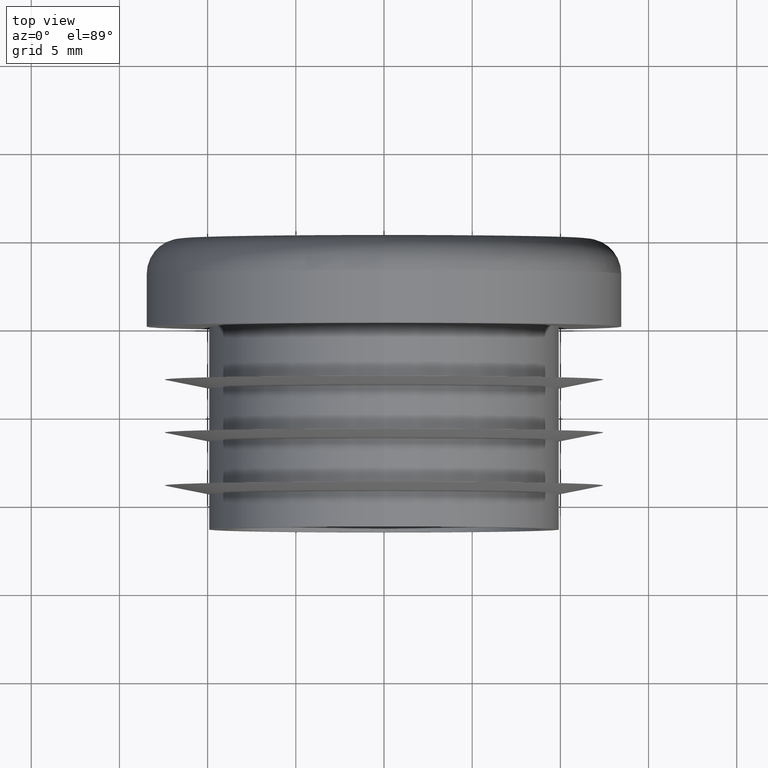
[diagram: clean part render]
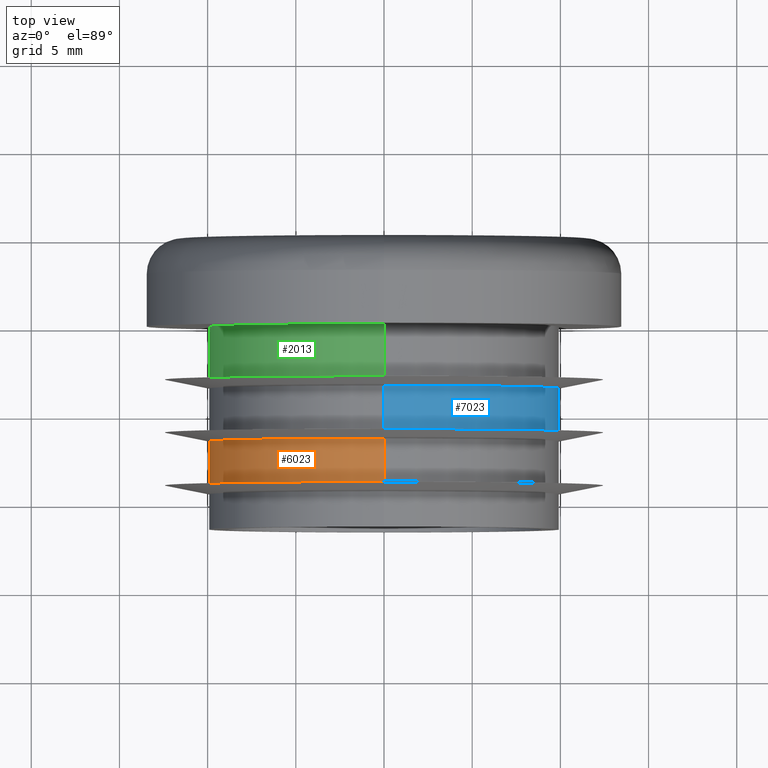
[diagram: same view with three faces highlighted in distinct colors, each labeled with its STEP entity id]
A machine part, top view with three faces highlighted in distinct colors.
Their STEP definitions:

[orange] entity #6023 — the highlighted cylindrical surface (partial cylindrical patch) has radius 9.95 mm, axis along (-0, 1, -0).
#81 = VERTEX_POINT ( 'NONE', #5447 ) ;
#326 = CARTESIAN_POINT ( 'NONE',  ( 1.218523565151616400E-015, -6.500000000000000900, -9.949999999999999300 ) ) ;
#384 = VERTEX_POINT ( 'NONE', #4307 ) ;
#1457 = CARTESIAN_POINT ( 'NONE',  ( 1.218523565151616400E-015, -9.000000000000000000, -9.949999999999999300 ) ) ;
#1610 = EDGE_CURVE ( 'NONE', #4909, #81, #4993, .T. ) ;
#2074 = LINE ( 'NONE', #2580, #7010 ) ;
#2577 = VECTOR ( 'NONE', #4112, 1000.000000000000000 ) ;
#2580 = CARTESIAN_POINT ( 'NONE',  ( 0.0000000000000000000, -11.50000000000000000, 9.949999999999999300 ) ) ;
#2761 = CARTESIAN_POINT ( 'NONE',  ( 0.0000000000000000000, -9.000000000000000000, 0.0000000000000000000 ) ) ;
#3038 = CIRCLE ( 'NONE', #4231, 9.949999999999999300 ) ;
#3442 = DIRECTION ( 'NONE',  ( 0.0000000000000000000, 0.0000000000000000000, -1.000000000000000000 ) ) ;
#3915 = EDGE_CURVE ( 'NONE', #384, #6318, #3038, .T. ) ;
#3943 = FACE_OUTER_BOUND ( 'NONE', #6321, .T. ) ;
#4005 = ORIENTED_EDGE ( 'NONE', *, *, #4469, .T. ) ;
#4112 = DIRECTION ( 'NONE',  ( -0.0000000000000000000, 1.000000000000000000, -0.0000000000000000000 ) ) ;
#4231 = AXIS2_PLACEMENT_3D ( 'NONE', #2761, #7197, #3442 ) ;
#4307 = CARTESIAN_POINT ( 'NONE',  ( 0.0000000000000000000, -9.000000000000000000, 9.949999999999999300 ) ) ;
#4367 = LINE ( 'NONE', #7195, #2577 ) ;
#4469 = EDGE_CURVE ( 'NONE', #384, #81, #2074, .T. ) ;
#4547 = DIRECTION ( 'NONE',  ( 0.0000000000000000000, 0.0000000000000000000, 1.000000000000000000 ) ) ;
#4909 = VERTEX_POINT ( 'NONE', #326 ) ;
#4993 = CIRCLE ( 'NONE', #5649, 9.949999999999999300 ) ;
#5173 = EDGE_CURVE ( 'NONE', #6318, #4909, #4367, .T. ) ;
#5447 = CARTESIAN_POINT ( 'NONE',  ( 0.0000000000000000000, -6.500000000000000900, 9.949999999999999300 ) ) ;
#5527 = CYLINDRICAL_SURFACE ( 'NONE', #6552, 9.949999999999999300 ) ;
#5649 = AXIS2_PLACEMENT_3D ( 'NONE', #6386, #6368, #6355 ) ;
#6023 = ADVANCED_FACE ( 'NONE', ( #3943 ), #5527, .T. ) ;
#6318 = VERTEX_POINT ( 'NONE', #1457 ) ;
#6321 = EDGE_LOOP ( 'NONE', ( #6767, #6676, #4005, #7506 ) ) ;
#6355 = DIRECTION ( 'NONE',  ( 0.0000000000000000000, 0.0000000000000000000, 1.000000000000000000 ) ) ;
#6368 = DIRECTION ( 'NONE',  ( -0.0000000000000000000, 1.000000000000000000, -0.0000000000000000000 ) ) ;
#6386 = CARTESIAN_POINT ( 'NONE',  ( 0.0000000000000000000, -6.500000000000000900, 0.0000000000000000000 ) ) ;
#6552 = AXIS2_PLACEMENT_3D ( 'NONE', #7596, #8190, #4547 ) ;
#6676 = ORIENTED_EDGE ( 'NONE', *, *, #3915, .F. ) ;
#6767 = ORIENTED_EDGE ( 'NONE', *, *, #5173, .F. ) ;
#7010 = VECTOR ( 'NONE', #8250, 1000.000000000000000 ) ;
#7195 = CARTESIAN_POINT ( 'NONE',  ( 1.218523565151616400E-015, -11.50000000000000000, -9.949999999999999300 ) ) ;
#7197 = DIRECTION ( 'NONE',  ( 0.0000000000000000000, -1.000000000000000000, 0.0000000000000000000 ) ) ;
#7506 = ORIENTED_EDGE ( 'NONE', *, *, #1610, .F. ) ;
#7596 = CARTESIAN_POINT ( 'NONE',  ( 0.0000000000000000000, -11.50000000000000000, 0.0000000000000000000 ) ) ;
#8190 = DIRECTION ( 'NONE',  ( -0.0000000000000000000, 1.000000000000000000, -0.0000000000000000000 ) ) ;
#8250 = DIRECTION ( 'NONE',  ( -0.0000000000000000000, 1.000000000000000000, -0.0000000000000000000 ) ) ;

[blue] entity #7023 — the highlighted cylindrical surface (partial cylindrical patch) has radius 9.95 mm, axis along (-0, 1, -0).
#57 = DIRECTION ( 'NONE',  ( -0.0000000000000000000, 1.000000000000000000, -0.0000000000000000000 ) ) ;
#167 = ORIENTED_EDGE ( 'NONE', *, *, #7599, .F. ) ;
#676 = CARTESIAN_POINT ( 'NONE',  ( 1.218523565151616400E-015, -3.500000000000000900, -9.949999999999999300 ) ) ;
#723 = EDGE_CURVE ( 'NONE', #7104, #1193, #7312, .T. ) ;
#995 = CIRCLE ( 'NONE', #7129, 9.949999999999999300 ) ;
#1193 = VERTEX_POINT ( 'NONE', #676 ) ;
#1223 = AXIS2_PLACEMENT_3D ( 'NONE', #3462, #57, #6644 ) ;
#1271 = CARTESIAN_POINT ( 'NONE',  ( 0.0000000000000000000, -11.50000000000000000, 9.949999999999999300 ) ) ;
#1472 = CIRCLE ( 'NONE', #2435, 9.949999999999999300 ) ;
#1634 = DIRECTION ( 'NONE',  ( -0.0000000000000000000, 1.000000000000000000, -0.0000000000000000000 ) ) ;
#1890 = ORIENTED_EDGE ( 'NONE', *, *, #4026, .F. ) ;
#2435 = AXIS2_PLACEMENT_3D ( 'NONE', #3279, #7670, #3954 ) ;
#2445 = FACE_OUTER_BOUND ( 'NONE', #4106, .T. ) ;
#2926 = VECTOR ( 'NONE', #5961, 1000.000000000000000 ) ;
#3032 = CARTESIAN_POINT ( 'NONE',  ( 1.218523565151616400E-015, -5.999999999999999100, -9.949999999999999300 ) ) ;
#3076 = ORIENTED_EDGE ( 'NONE', *, *, #723, .T. ) ;
#3279 = CARTESIAN_POINT ( 'NONE',  ( 0.0000000000000000000, -5.999999999999999100, 0.0000000000000000000 ) ) ;
#3342 = DIRECTION ( 'NONE',  ( -0.0000000000000000000, 1.000000000000000000, -0.0000000000000000000 ) ) ;
#3377 = CARTESIAN_POINT ( 'NONE',  ( 1.218523565151616400E-015, -11.50000000000000000, -9.949999999999999300 ) ) ;
#3462 = CARTESIAN_POINT ( 'NONE',  ( 0.0000000000000000000, -11.50000000000000000, 0.0000000000000000000 ) ) ;
#3954 = DIRECTION ( 'NONE',  ( 0.0000000000000000000, 0.0000000000000000000, -1.000000000000000000 ) ) ;
#4008 = VECTOR ( 'NONE', #3342, 1000.000000000000000 ) ;
#4026 = EDGE_CURVE ( 'NONE', #4684, #1193, #995, .T. ) ;
#4106 = EDGE_LOOP ( 'NONE', ( #167, #3076, #1890, #4392 ) ) ;
#4150 = CARTESIAN_POINT ( 'NONE',  ( 0.0000000000000000000, -3.500000000000000900, 9.949999999999999300 ) ) ;
#4392 = ORIENTED_EDGE ( 'NONE', *, *, #7666, .F. ) ;
#4684 = VERTEX_POINT ( 'NONE', #4150 ) ;
#5031 = VERTEX_POINT ( 'NONE', #7699 ) ;
#5692 = CARTESIAN_POINT ( 'NONE',  ( 0.0000000000000000000, -3.500000000000000900, 0.0000000000000000000 ) ) ;
#5961 = DIRECTION ( 'NONE',  ( -0.0000000000000000000, 1.000000000000000000, -0.0000000000000000000 ) ) ;
#6029 = LINE ( 'NONE', #1271, #2926 ) ;
#6273 = DIRECTION ( 'NONE',  ( 0.0000000000000000000, 0.0000000000000000000, 1.000000000000000000 ) ) ;
#6644 = DIRECTION ( 'NONE',  ( 0.0000000000000000000, 0.0000000000000000000, 1.000000000000000000 ) ) ;
#7023 = ADVANCED_FACE ( 'NONE', ( #2445 ), #7147, .T. ) ;
#7104 = VERTEX_POINT ( 'NONE', #3032 ) ;
#7129 = AXIS2_PLACEMENT_3D ( 'NONE', #5692, #1634, #6273 ) ;
#7147 = CYLINDRICAL_SURFACE ( 'NONE', #1223, 9.949999999999999300 ) ;
#7312 = LINE ( 'NONE', #3377, #4008 ) ;
#7599 = EDGE_CURVE ( 'NONE', #7104, #5031, #1472, .T. ) ;
#7666 = EDGE_CURVE ( 'NONE', #5031, #4684, #6029, .T. ) ;
#7670 = DIRECTION ( 'NONE',  ( 0.0000000000000000000, -1.000000000000000000, 0.0000000000000000000 ) ) ;
#7699 = CARTESIAN_POINT ( 'NONE',  ( 0.0000000000000000000, -5.999999999999999100, 9.949999999999999300 ) ) ;

[green] entity #2013 — the highlighted cylindrical surface (partial cylindrical patch) has radius 9.95 mm, axis along (-0, 1, -0).
#282 = CARTESIAN_POINT ( 'NONE',  ( 0.0000000000000000000, 0.0000000000000000000, 9.949999999999999300 ) ) ;
#1092 = ORIENTED_EDGE ( 'NONE', *, *, #4399, .T. ) ;
#1269 = CYLINDRICAL_SURFACE ( 'NONE', #3683, 9.949999999999999300 ) ;
#1617 = DIRECTION ( 'NONE',  ( -0.0000000000000000000, 1.000000000000000000, -0.0000000000000000000 ) ) ;
#1665 = ORIENTED_EDGE ( 'NONE', *, *, #1748, .T. ) ;
#1748 = EDGE_CURVE ( 'NONE', #6439, #7904, #2564, .T. ) ;
#2013 = ADVANCED_FACE ( 'NONE', ( #8082 ), #1269, .T. ) ;
#2209 = CARTESIAN_POINT ( 'NONE',  ( 0.0000000000000000000, -2.999999999999999100, 9.949999999999999300 ) ) ;
#2310 = ORIENTED_EDGE ( 'NONE', *, *, #6524, .F. ) ;
#2424 = CARTESIAN_POINT ( 'NONE',  ( 0.0000000000000000000, -2.999999999999999100, 0.0000000000000000000 ) ) ;
#2559 = AXIS2_PLACEMENT_3D ( 'NONE', #2424, #6916, #3108 ) ;
#2564 = LINE ( 'NONE', #6026, #5888 ) ;
#3108 = DIRECTION ( 'NONE',  ( 0.0000000000000000000, 0.0000000000000000000, -1.000000000000000000 ) ) ;
#3371 = DIRECTION ( 'NONE',  ( -0.0000000000000000000, 1.000000000000000000, -0.0000000000000000000 ) ) ;
#3397 = CARTESIAN_POINT ( 'NONE',  ( 0.0000000000000000000, -11.50000000000000000, 0.0000000000000000000 ) ) ;
#3445 = DIRECTION ( 'NONE',  ( 0.0000000000000000000, 0.0000000000000000000, 1.000000000000000000 ) ) ;
#3683 = AXIS2_PLACEMENT_3D ( 'NONE', #3397, #3371, #3445 ) ;
#3759 = CARTESIAN_POINT ( 'NONE',  ( 1.218523565151616400E-015, 0.0000000000000000000, -9.949999999999999300 ) ) ;
#3914 = DIRECTION ( 'NONE',  ( -0.0000000000000000000, -1.000000000000000000, -0.0000000000000000000 ) ) ;
#4399 = EDGE_CURVE ( 'NONE', #7904, #5992, #7388, .T. ) ;
#4855 = VERTEX_POINT ( 'NONE', #5657 ) ;
#4985 = VECTOR ( 'NONE', #1617, 1000.000000000000000 ) ;
#5417 = AXIS2_PLACEMENT_3D ( 'NONE', #7628, #3914, #8221 ) ;
#5657 = CARTESIAN_POINT ( 'NONE',  ( 1.218523565151616400E-015, -2.999999999999999100, -9.949999999999999300 ) ) ;
#5788 = EDGE_LOOP ( 'NONE', ( #2310, #7965, #1665, #1092 ) ) ;
#5888 = VECTOR ( 'NONE', #6050, 1000.000000000000000 ) ;
#5992 = VERTEX_POINT ( 'NONE', #3759 ) ;
#6026 = CARTESIAN_POINT ( 'NONE',  ( 0.0000000000000000000, -11.50000000000000000, 9.949999999999999300 ) ) ;
#6050 = DIRECTION ( 'NONE',  ( -0.0000000000000000000, 1.000000000000000000, -0.0000000000000000000 ) ) ;
#6258 = CARTESIAN_POINT ( 'NONE',  ( 1.218523565151616400E-015, -11.50000000000000000, -9.949999999999999300 ) ) ;
#6439 = VERTEX_POINT ( 'NONE', #2209 ) ;
#6524 = EDGE_CURVE ( 'NONE', #4855, #5992, #6616, .T. ) ;
#6616 = LINE ( 'NONE', #6258, #4985 ) ;
#6683 = CIRCLE ( 'NONE', #2559, 9.949999999999999300 ) ;
#6916 = DIRECTION ( 'NONE',  ( 0.0000000000000000000, -1.000000000000000000, 0.0000000000000000000 ) ) ;
#7388 = CIRCLE ( 'NONE', #5417, 9.949999999999999300 ) ;
#7628 = CARTESIAN_POINT ( 'NONE',  ( 0.0000000000000000000, 0.0000000000000000000, 0.0000000000000000000 ) ) ;
#7904 = VERTEX_POINT ( 'NONE', #282 ) ;
#7965 = ORIENTED_EDGE ( 'NONE', *, *, #8358, .F. ) ;
#8082 = FACE_OUTER_BOUND ( 'NONE', #5788, .T. ) ;
#8221 = DIRECTION ( 'NONE',  ( 0.0000000000000000000, 0.0000000000000000000, 1.000000000000000000 ) ) ;
#8358 = EDGE_CURVE ( 'NONE', #6439, #4855, #6683, .T. ) ;